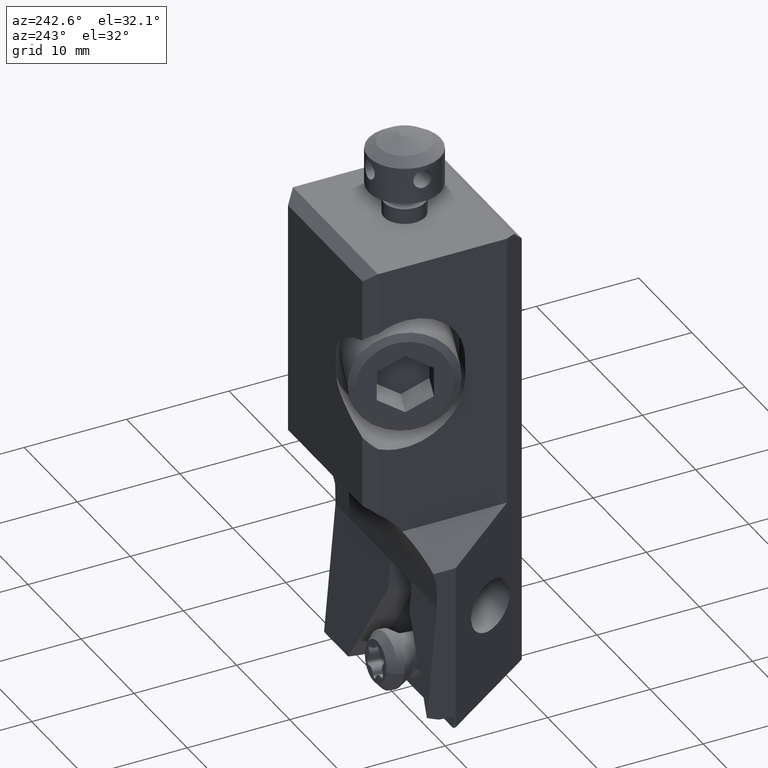
[diagram: clean part render]
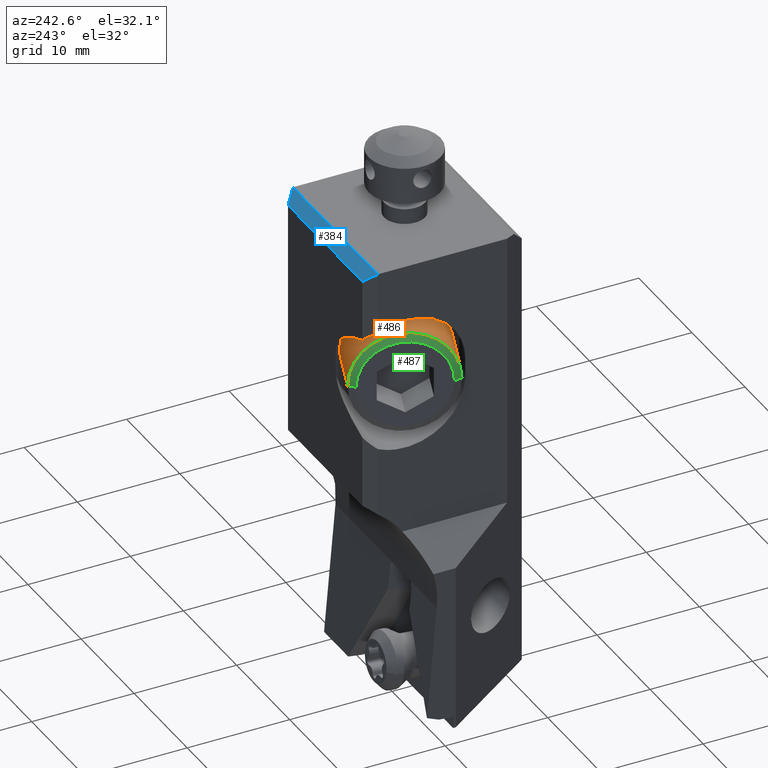
[diagram: same view with three faces highlighted in distinct colors, each labeled with its STEP entity id]
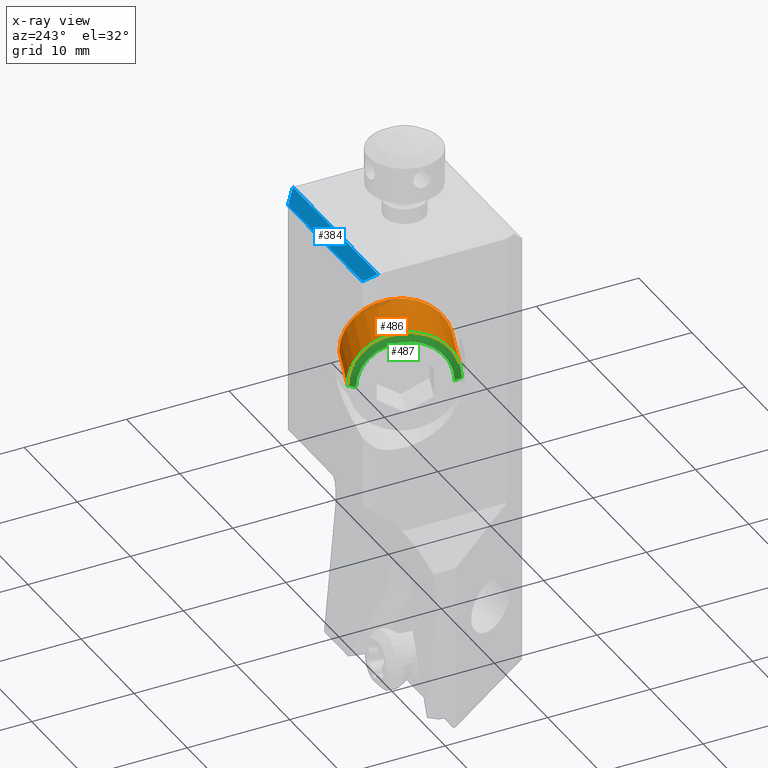
[diagram: x-ray of the same camera — body ghosted, the three highlighted faces saturated]
A machine part, auxiliary view with three faces highlighted in distinct colors.
The next image is the same camera in x-ray (body ghosted, the three faces saturated) — at least one of them is partly hidden behind the body in this view.
Their STEP definitions:

[orange] entity #486 — the highlighted cylindrical surface (partial cylindrical patch) has radius 5 mm, axis along (0.9397, -0.342, 0).
#219=CYLINDRICAL_SURFACE('',#2940,5.000000000012);
#350=CIRCLE('',#2934,5.000000000012);
#353=CIRCLE('',#2939,4.99999999999);
#486=ADVANCED_FACE('',(#664),#219,.T.);
#664=FACE_OUTER_BOUND('',#817,.T.);
#817=EDGE_LOOP('',(#1538,#1539,#1540,#1541));
#1538=ORIENTED_EDGE('',*,*,#2174,.T.);
#1539=ORIENTED_EDGE('',*,*,#2171,.F.);
#1540=ORIENTED_EDGE('',*,*,#2169,.T.);
#1541=ORIENTED_EDGE('',*,*,#2173,.F.);
#1809=VERTEX_POINT('',#5274);
#1810=VERTEX_POINT('',#5275);
#1811=VERTEX_POINT('',#5279);
#1812=VERTEX_POINT('',#5281);
#2169=EDGE_CURVE('',#1809,#1810,#350,.T.);
#2171=EDGE_CURVE('',#1809,#1811,#2349,.T.);
#2173=EDGE_CURVE('',#1812,#1810,#2350,.T.);
#2174=EDGE_CURVE('',#1812,#1811,#353,.T.);
#2349=LINE('',#5278,#2523);
#2350=LINE('',#5282,#2524);
#2523=VECTOR('',#3705,1.);
#2524=VECTOR('',#3708,1.);
#2934=AXIS2_PLACEMENT_3D('',#5273,#3699,#3700);
#2939=AXIS2_PLACEMENT_3D('',#5284,#3711,#3712);
#2940=AXIS2_PLACEMENT_3D('',#5285,#3713,#3714);
#3699=DIRECTION('',(-0.939692620787022,0.342020143322608,0.));
#3700=DIRECTION('',(-0.342020143322608,-0.939692620787022,0.));
#3705=DIRECTION('',(-0.939692620786546,0.342020143323917,0.));
#3708=DIRECTION('',(0.939692620787066,-0.342020143322488,0.));
#3711=DIRECTION('',(0.939692620784989,-0.342020143328196,0.));
#3712=DIRECTION('',(0.342020143328196,0.939692620784988,0.));
#3713=DIRECTION('',(0.939692620787022,-0.342020143322608,0.));
#3714=DIRECTION('',(0.342020143322608,0.939692620787023,0.));
#5273=CARTESIAN_POINT('',(-10.36184427527,9.771402888325,-12.));
#5274=CARTESIAN_POINT('',(-12.0719449919,5.07293978438,-12.));
#5275=CARTESIAN_POINT('',(-8.651743558647,14.46986599226,-12.));
#5278=CARTESIAN_POINT('',(-12.0719449919,5.07293978438,-12.));
#5279=CARTESIAN_POINT('',(-17.33422366831,6.988252586995,-12.));
#5281=CARTESIAN_POINT('',(-13.91402223504,16.38517879486,-12.));
#5282=CARTESIAN_POINT('',(-13.91402223504,16.38517879486,-12.));
#5284=CARTESIAN_POINT('',(-15.62412295168,11.68671569092,-12.));
#5285=CARTESIAN_POINT('',(-15.72936852523,11.72502194699,-12.));

[blue] entity #384 — the highlighted planar face has unit normal (0, 0.7071, 0.7071).
#384=ADVANCED_FACE('',(#572),#518,.T.);
#518=PLANE('',#2717);
#572=FACE_OUTER_BOUND('',#705,.T.);
#705=EDGE_LOOP('',(#1018,#1019,#1020,#1021));
#1018=ORIENTED_EDGE('',*,*,#1923,.F.);
#1019=ORIENTED_EDGE('',*,*,#1926,.F.);
#1020=ORIENTED_EDGE('',*,*,#1927,.T.);
#1021=ORIENTED_EDGE('',*,*,#1925,.F.);
#1603=VERTEX_POINT('',#3817);
#1646=VERTEX_POINT('',#3942);
#1657=VERTEX_POINT('',#3970);
#1658=VERTEX_POINT('',#3972);
#1923=EDGE_CURVE('',#1657,#1658,#2261,.T.);
#1925=EDGE_CURVE('',#1658,#1603,#2263,.T.);
#1926=EDGE_CURVE('',#1646,#1657,#2264,.T.);
#1927=EDGE_CURVE('',#1646,#1603,#2265,.T.);
#2261=LINE('',#3971,#2435);
#2263=LINE('',#3975,#2437);
#2264=LINE('',#3977,#2438);
#2265=LINE('',#3978,#2439);
#2435=VECTOR('',#3173,1.);
#2437=VECTOR('',#3177,1.);
#2438=VECTOR('',#3180,1.);
#2439=VECTOR('',#3181,1.);
#2717=AXIS2_PLACEMENT_3D('',#3979,#3182,#3183);
#3173=DIRECTION('',(1.,0.,0.));
#3177=DIRECTION('',(0.577350269189626,-0.577350269189626,0.577350269189626));
#3180=DIRECTION('',(0.577350269189626,0.577350269189626,-0.577350269189626));
#3181=DIRECTION('',(1.,0.,0.));
#3182=DIRECTION('',(0.,0.707106781186598,0.707106781186498));
#3183=DIRECTION('',(0.,-0.707106781186498,0.707106781186598));
#3817=CARTESIAN_POINT('',(0.,14.5,0.));
#3942=CARTESIAN_POINT('',(-16.,14.5,0.));
#3970=CARTESIAN_POINT('',(-15.,15.5,-1.));
#3971=CARTESIAN_POINT('',(-15.,15.5,-1.));
#3972=CARTESIAN_POINT('',(-1.,15.5,-1.));
#3975=CARTESIAN_POINT('',(-1.,15.5,-1.));
#3977=CARTESIAN_POINT('',(-16.,14.5,0.));
#3978=CARTESIAN_POINT('',(-16.,14.5,0.));
#3979=CARTESIAN_POINT('',(-8.,15.,-0.5));

[green] entity #487 — the highlighted conical surface has half-angle 60 deg.
#131=CONICAL_SURFACE('',#2942,4.653589838478,59.99999999977);
#353=CIRCLE('',#2939,4.99999999999);
#354=CIRCLE('',#2941,4.307179676966);
#487=ADVANCED_FACE('',(#665),#131,.T.);
#665=FACE_OUTER_BOUND('',#818,.T.);
#818=EDGE_LOOP('',(#1542,#1543,#1544,#1545));
#1542=ORIENTED_EDGE('',*,*,#2175,.T.);
#1543=ORIENTED_EDGE('',*,*,#2176,.T.);
#1544=ORIENTED_EDGE('',*,*,#2174,.F.);
#1545=ORIENTED_EDGE('',*,*,#2177,.T.);
#1811=VERTEX_POINT('',#5279);
#1812=VERTEX_POINT('',#5281);
#1813=VERTEX_POINT('',#5287);
#1814=VERTEX_POINT('',#5288);
#2174=EDGE_CURVE('',#1812,#1811,#353,.T.);
#2175=EDGE_CURVE('',#1813,#1814,#354,.T.);
#2176=EDGE_CURVE('',#1814,#1811,#2351,.T.);
#2177=EDGE_CURVE('',#1812,#1813,#2352,.T.);
#2351=LINE('',#5289,#2525);
#2352=LINE('',#5290,#2526);
#2525=VECTOR('',#3717,1.);
#2526=VECTOR('',#3718,1.);
#2939=AXIS2_PLACEMENT_3D('',#5284,#3711,#3712);
#2941=AXIS2_PLACEMENT_3D('',#5286,#3715,#3716);
#2942=AXIS2_PLACEMENT_3D('',#5291,#3719,#3720);
#3711=DIRECTION('',(0.939692620784989,-0.342020143328196,0.));
#3712=DIRECTION('',(0.342020143328196,0.939692620784988,0.));
#3715=DIRECTION('',(0.939692620784989,-0.342020143328196,0.));
#3716=DIRECTION('',(0.342020143328196,0.939692620784988,0.));
#3717=DIRECTION('',(0.173648177670496,-0.984807753011579,0.));
#3718=DIRECTION('',(-0.76604444311257,-0.642787609694175,0.));
#3719=DIRECTION('',(0.939692620784989,-0.342020143328196,0.));
#3720=DIRECTION('',(0.342020143328196,0.939692620784989,0.));
#5279=CARTESIAN_POINT('',(-17.33422366831,6.988252586995,-12.));
#5281=CARTESIAN_POINT('',(-13.91402223504,16.38517879486,-12.));
#5284=CARTESIAN_POINT('',(-15.62412295168,11.68671569092,-12.));
#5286=CARTESIAN_POINT('',(-15.99999999999,11.82352374825,-12.));
#5287=CARTESIAN_POINT('',(-14.52685778954,15.8709487071,-12.));
#5288=CARTESIAN_POINT('',(-17.47314221045,7.776098789411,-12.));
#5289=CARTESIAN_POINT('',(-17.47314221045,7.776098789411,-12.));
#5290=CARTESIAN_POINT('',(-13.91402223504,16.38517879486,-12.));
#5291=CARTESIAN_POINT('',(-15.81206147583,11.75511971959,-12.));